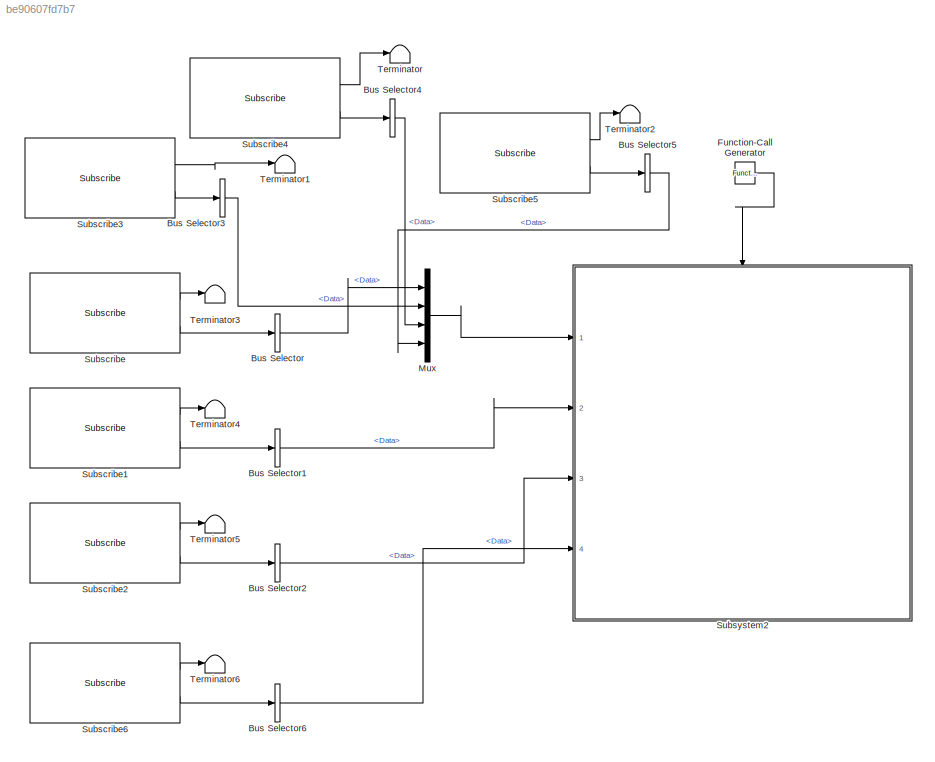
MODEL slx_be90607fd7b7
KIND model
CONFIG AbsTol = auto
CONFIG EnableMultiTasking = off
CONFIG FixedStep = 0.001
CONFIG MaxStep = auto
CONFIG MinStep = auto
CONFIG RelTol = 1e-2
CONFIG SampleTimeConstraint = Unconstrained
CONFIG SolverName = FixedStepAuto
CONFIG StartTime = 0.0
CONFIG StopTime = 10
BLOCK [BusSelector] Bus Selector
  OutputSignals = Data
  Ports = [1, 1]
BLOCK [BusSelector] Bus Selector1
  OutputSignals = Data
  Ports = [1, 1]
BLOCK [BusSelector] Bus Selector2
  OutputSignals = Data
  Ports = [1, 1]
BLOCK [BusSelector] Bus Selector3
  OutputSignals = Data
  Ports = [1, 1]
BLOCK [BusSelector] Bus Selector4
  OutputSignals = Data
  Ports = [1, 1]
BLOCK [BusSelector] Bus Selector5
  OutputSignals = Data
  Ports = [1, 1]
BLOCK [BusSelector] Bus Selector6
  OutputSignals = Data
  Ports = [1, 1]
BLOCK [Reference] Function-Call Generator  REF=simulink/Ports &
Subsystems/Function-Call
Generator
  Ports = [0, 1]
  SourceBlock = simulink/Ports &\nSubsystems/Function-Call\nGenerator
  SourceProductBaseCode = SL
  SourceType = Function-Call Generator
BLOCK [Mux] Mux
  DisplayOption = bar
  Ports = [4, 1]
BLOCK [Reference] Subscribe  REF=robotlib/Subscribe
  Ports = [0, 2]
  SourceBlock = robotlib/Subscribe
  SourceProductBaseCode = RR
  SourceType = ROS Subscribe
BLOCK [Reference] Subscribe1  REF=robotlib/Subscribe
  Ports = [0, 2]
  SourceBlock = robotlib/Subscribe
  SourceProductBaseCode = RR
  SourceType = ROS Subscribe
BLOCK [Reference] Subscribe2  REF=robotlib/Subscribe
  Ports = [0, 2]
  SourceBlock = robotlib/Subscribe
  SourceProductBaseCode = RR
  SourceType = ROS Subscribe
BLOCK [Reference] Subscribe3  REF=robotlib/Subscribe
  Ports = [0, 2]
  SourceBlock = robotlib/Subscribe
  SourceProductBaseCode = RR
  SourceType = ROS Subscribe
BLOCK [Reference] Subscribe4  REF=robotlib/Subscribe
  Ports = [0, 2]
  SourceBlock = robotlib/Subscribe
  SourceProductBaseCode = RR
  SourceType = ROS Subscribe
BLOCK [Reference] Subscribe5  REF=robotlib/Subscribe
  Ports = [0, 2]
  SourceBlock = robotlib/Subscribe
  SourceProductBaseCode = RR
  SourceType = ROS Subscribe
BLOCK [Reference] Subscribe6  REF=robotlib/Subscribe
  Ports = [0, 2]
  SourceBlock = robotlib/Subscribe
  SourceProductBaseCode = RR
  SourceType = ROS Subscribe
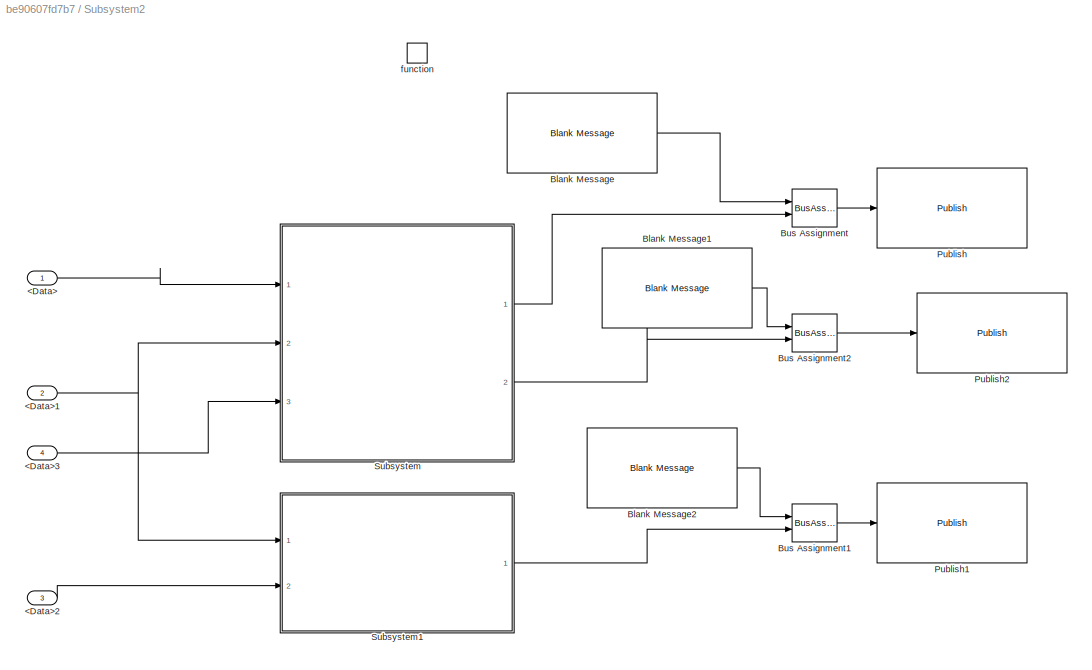
BLOCK [SubSystem] Subsystem2
  Ports = [4, 0, 0, 1]
  RequestExecContextInheritance = off
BLOCK [Inport] Subsystem2/<Data>
BLOCK [Inport] Subsystem2/<Data>1
  Port = 2
BLOCK [Inport] Subsystem2/<Data>2
  Port = 3
BLOCK [Inport] Subsystem2/<Data>3
  Port = 4
BLOCK [Reference] Subsystem2/Blank Message  REF=robotlib/Blank Message
  Ports = [0, 1]
  SourceBlock = robotlib/Blank Message
  SourceProductBaseCode = RR
  SourceType = ROS Blank Message
BLOCK [Reference] Subsystem2/Blank Message1  REF=robotlib/Blank Message
  Ports = [0, 1]
  SourceBlock = robotlib/Blank Message
  SourceProductBaseCode = RR
  SourceType = ROS Blank Message
BLOCK [Reference] Subsystem2/Blank Message2  REF=robotlib/Blank Message
  Ports = [0, 1]
  SourceBlock = robotlib/Blank Message
  SourceProductBaseCode = RR
  SourceType = ROS Blank Message
BLOCK [BusAssignment] Subsystem2/Bus Assignment
  AssignedSignals = Data
  Ports = [2, 1]
BLOCK [BusAssignment] Subsystem2/Bus Assignment1
  AssignedSignals = Data
  Ports = [2, 1]
BLOCK [BusAssignment] Subsystem2/Bus Assignment2
  AssignedSignals = Data
  Ports = [2, 1]
BLOCK [Reference] Subsystem2/Publish  REF=robotlib/Publish
  Ports = [1]
  SourceBlock = robotlib/Publish
  SourceProductBaseCode = RR
  SourceType = ROS Publish
BLOCK [Reference] Subsystem2/Publish1  REF=robotlib/Publish
  Ports = [1]
  SourceBlock = robotlib/Publish
  SourceProductBaseCode = RR
  SourceType = ROS Publish
BLOCK [Reference] Subsystem2/Publish2  REF=robotlib/Publish
  Ports = [1]
  SourceBlock = robotlib/Publish
  SourceProductBaseCode = RR
  SourceType = ROS Publish
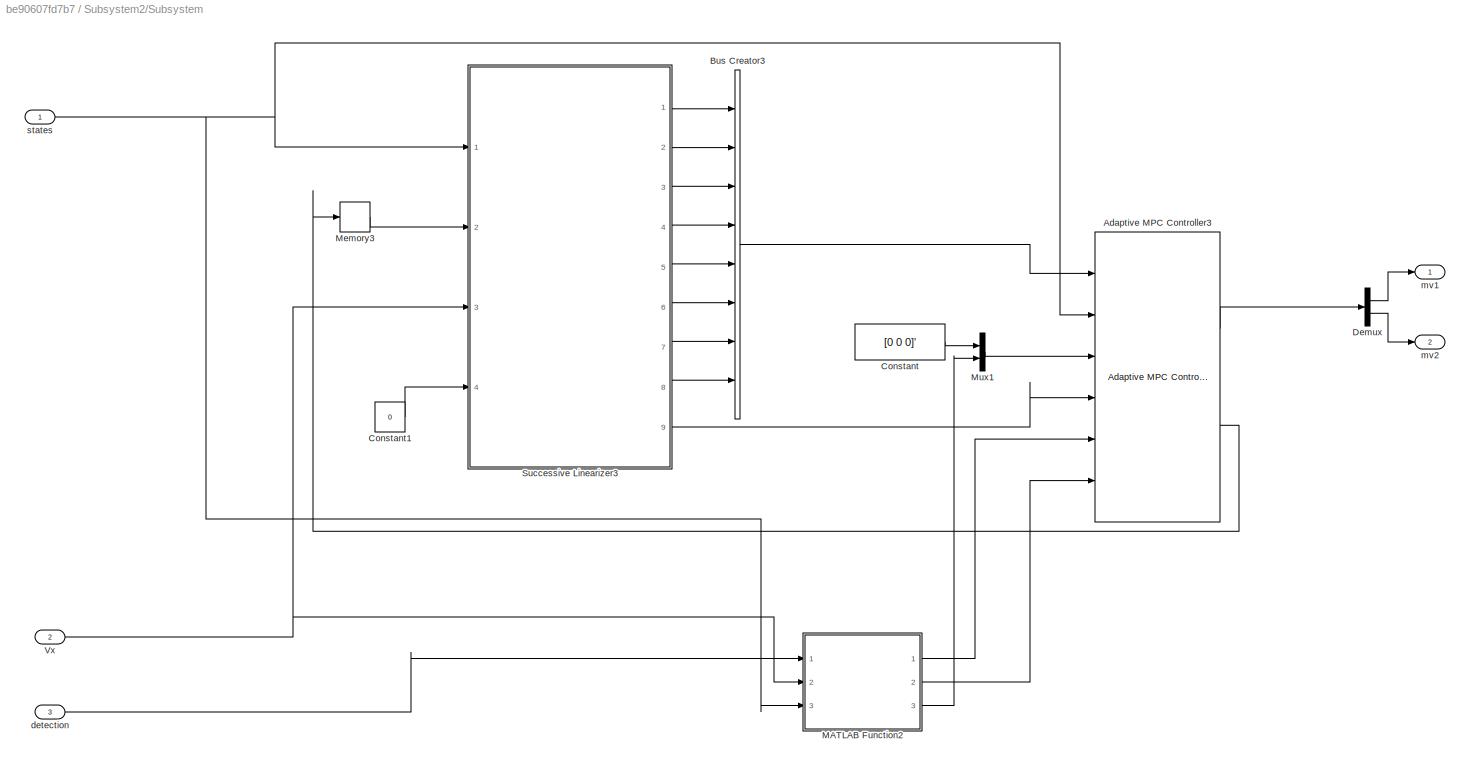
BLOCK [SubSystem] Subsystem2/Subsystem
  Ports = [3, 2]
  RequestExecContextInheritance = off
BLOCK [Reference] Subsystem2/Subsystem/Adaptive MPC Controller3  REF=mpclib/Adaptive MPC Controller  (lib defined in mdl_ae329e0e0455)
  Ports = [6, 2]
  SCDEnableBlockLinearizationSpecification = on
  SourceBlock = mpclib/Adaptive MPC Controller
  SourceProductBaseCode = MP
  SourceType = Adaptive MPC
BLOCK [BusCreator] Subsystem2/Subsystem/Bus Creator3
  DisplayOption = bar
  InheritFromInputs = on
  Inputs = 8
  Ports = [8, 1]
BLOCK [Constant] Subsystem2/Subsystem/Constant
  Value = [0 0 0]'
BLOCK [Constant] Subsystem2/Subsystem/Constant1
  Value = 0
BLOCK [Demux] Subsystem2/Subsystem/Demux
  Outputs = 2
  Ports = [1, 2]
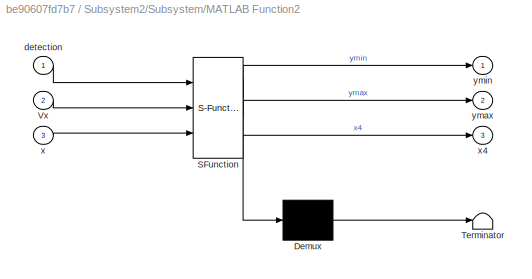
BLOCK [SubSystem] Subsystem2/Subsystem/MATLAB Function2
  ErrorFcn = Stateflow.Translate.translate
  PermitHierarchicalResolution = ExplicitOnly
  Ports = [3, 3]
  RequestExecContextInheritance = off
  SFBlockType = MATLAB Function
  TreatAsAtomicUnit = on
BLOCK [Demux] Subsystem2/Subsystem/MATLAB Function2/ Demux 
  Outputs = 1
  Ports = [1, 1]
BLOCK [S-Function] Subsystem2/Subsystem/MATLAB Function2/ SFunction 
  EnableBusSupport = on
  FunctionName = sf_sfun
  PortCounts = [3 4]
  Ports = [3, 4]
  SFcnIsStateOwnerBlock = off
  SFunctionDeploymentMode = off
  Tag = Stateflow S-Function 2
BLOCK [Terminator] Subsystem2/Subsystem/MATLAB Function2/ Terminator 
BLOCK [Inport] Subsystem2/Subsystem/MATLAB Function2/Vx
  Port = 2
BLOCK [Inport] Subsystem2/Subsystem/MATLAB Function2/detection
BLOCK [Inport] Subsystem2/Subsystem/MATLAB Function2/x
  Port = 3
BLOCK [Outport] Subsystem2/Subsystem/MATLAB Function2/x4
  Port = 3
BLOCK [Outport] Subsystem2/Subsystem/MATLAB Function2/ymax
  Port = 2
BLOCK [Outport] Subsystem2/Subsystem/MATLAB Function2/ymin
BLOCK [Memory] Subsystem2/Subsystem/Memory3
  InheritSampleTime = on
BLOCK [Mux] Subsystem2/Subsystem/Mux1
  DisplayOption = bar
  Inputs = 2
  Ports = [2, 1]
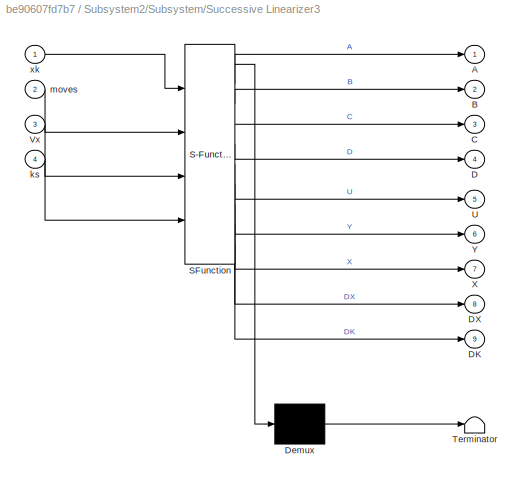
BLOCK [SubSystem] Subsystem2/Subsystem/Successive Linearizer3
  ErrorFcn = Stateflow.Translate.translate
  PermitHierarchicalResolution = ExplicitOnly
  Ports = [4, 9]
  RequestExecContextInheritance = off
  SFBlockType = MATLAB Function
  TreatAsAtomicUnit = on
BLOCK [Demux] Subsystem2/Subsystem/Successive Linearizer3/ Demux 
  Outputs = 1
  Ports = [1, 1]
BLOCK [S-Function] Subsystem2/Subsystem/Successive Linearizer3/ SFunction 
  EnableBusSupport = on
  FunctionName = sf_sfun
  Parameters = PredictionHorizon,Ts
  PortCounts = [4 10]
  Ports = [4, 10]
  SFcnIsStateOwnerBlock = off
  SFunctionDeploymentMode = off
  Tag = Stateflow S-Function 14
BLOCK [Terminator] Subsystem2/Subsystem/Successive Linearizer3/ Terminator 
BLOCK [Outport] Subsystem2/Subsystem/Successive Linearizer3/A
BLOCK [Outport] Subsystem2/Subsystem/Successive Linearizer3/B
  Port = 2
BLOCK [Outport] Subsystem2/Subsystem/Successive Linearizer3/C
  Port = 3
BLOCK [Outport] Subsystem2/Subsystem/Successive Linearizer3/D
  Port = 4
BLOCK [Outport] Subsystem2/Subsystem/Successive Linearizer3/DK
  Port = 9
BLOCK [Outport] Subsystem2/Subsystem/Successive Linearizer3/DX
  Port = 8
BLOCK [Outport] Subsystem2/Subsystem/Successive Linearizer3/U
  Port = 5
BLOCK [Inport] Subsystem2/Subsystem/Successive Linearizer3/Vx
  Port = 3
BLOCK [Outport] Subsystem2/Subsystem/Successive Linearizer3/X
  Port = 7
BLOCK [Outport] Subsystem2/Subsystem/Successive Linearizer3/Y
  Port = 6
BLOCK [Inport] Subsystem2/Subsystem/Successive Linearizer3/ks
  Port = 4
BLOCK [Inport] Subsystem2/Subsystem/Successive Linearizer3/moves
  Port = 2
BLOCK [Inport] Subsystem2/Subsystem/Successive Linearizer3/xk
BLOCK [Inport] Subsystem2/Subsystem/Vx
  Port = 2
BLOCK [Inport] Subsystem2/Subsystem/detection
  Port = 3
BLOCK [Outport] Subsystem2/Subsystem/mv1
BLOCK [Outport] Subsystem2/Subsystem/mv2
  Port = 2
BLOCK [Inport] Subsystem2/Subsystem/states
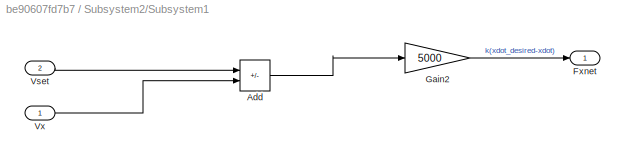
BLOCK [SubSystem] Subsystem2/Subsystem1
  Ports = [2, 1]
  RequestExecContextInheritance = off
BLOCK [Sum] Subsystem2/Subsystem1/Add
  IconShape = rectangular
  Inputs = +-
  Ports = [2, 1]
BLOCK [Outport] Subsystem2/Subsystem1/Fxnet
BLOCK [Gain] Subsystem2/Subsystem1/Gain2
  Gain = 5000
BLOCK [Inport] Subsystem2/Subsystem1/Vset
  Port = 2
BLOCK [Inport] Subsystem2/Subsystem1/Vx
BLOCK [TriggerPort] Subsystem2/function
  Ports = []
  SampleTime = 0.1
  SampleTimeType = periodic
  StatesWhenEnabling = held
  TriggerType = function-call
  VariantControl = (inherit)
BLOCK [Terminator] Terminator
BLOCK [Terminator] Terminator1
BLOCK [Terminator] Terminator2
BLOCK [Terminator] Terminator3
BLOCK [Terminator] Terminator4
BLOCK [Terminator] Terminator5
BLOCK [Terminator] Terminator6
LINE Bus Selector1:1 -> Subsystem2:2
LINE Bus Selector2:1 -> Subsystem2:3
LINE Bus Selector3:1 -> Mux:2
LINE Bus Selector4:1 -> Mux:3
LINE Bus Selector5:1 -> Mux:4
LINE Bus Selector6:1 -> Subsystem2:4
LINE Bus Selector:1 -> Mux:1
LINE Function-Call Generator:1 -> Subsystem2:trigger
LINE Mux:1 -> Subsystem2:1
LINE Subscribe1:1 -> Terminator4:1
LINE Subscribe1:2 -> Bus Selector1:1
LINE Subscribe2:1 -> Terminator5:1
LINE Subscribe2:2 -> Bus Selector2:1
LINE Subscribe3:1 -> Terminator1:1
LINE Subscribe3:2 -> Bus Selector3:1
LINE Subscribe4:1 -> Terminator:1
LINE Subscribe4:2 -> Bus Selector4:1
LINE Subscribe5:1 -> Terminator2:1
LINE Subscribe5:2 -> Bus Selector5:1
LINE Subscribe6:1 -> Terminator6:1
LINE Subscribe6:2 -> Bus Selector6:1
LINE Subscribe:1 -> Terminator3:1
LINE Subscribe:2 -> Bus Selector:1
NET Subsystem2/<Data>1:1 -> Subsystem2/Subsystem1:1, Subsystem2/Subsystem:2
LINE Subsystem2/<Data>2:1 -> Subsystem2/Subsystem1:2
LINE Subsystem2/<Data>3:1 -> Subsystem2/Subsystem:3
LINE Subsystem2/<Data>:1 -> Subsystem2/Subsystem:1
LINE Subsystem2/Blank Message1:1 -> Subsystem2/Bus Assignment2:1
LINE Subsystem2/Blank Message2:1 -> Subsystem2/Bus Assignment1:1
LINE Subsystem2/Blank Message:1 -> Subsystem2/Bus Assignment:1
LINE Subsystem2/Bus Assignment1:1 -> Subsystem2/Publish1:1
LINE Subsystem2/Bus Assignment2:1 -> Subsystem2/Publish2:1
LINE Subsystem2/Bus Assignment:1 -> Subsystem2/Publish:1
LINE Subsystem2/Subsystem/Adaptive MPC Controller3:1 -> Subsystem2/Subsystem/Demux:1
LINE Subsystem2/Subsystem/Adaptive MPC Controller3:2 -> Subsystem2/Subsystem/Memory3:1
LINE Subsystem2/Subsystem/Bus Creator3:1 -> Subsystem2/Subsystem/Adaptive MPC Controller3:1
LINE Subsystem2/Subsystem/Constant1:1 -> Subsystem2/Subsystem/Successive Linearizer3:4
LINE Subsystem2/Subsystem/Constant:1 -> Subsystem2/Subsystem/Mux1:1
LINE Subsystem2/Subsystem/Demux:1 -> Subsystem2/Subsystem/mv1:1
LINE Subsystem2/Subsystem/Demux:2 -> Subsystem2/Subsystem/mv2:1
LINE Subsystem2/Subsystem/MATLAB Function2:1 -> Subsystem2/Subsystem/Adaptive MPC Controller3:5
LINE Subsystem2/Subsystem/MATLAB Function2:2 -> Subsystem2/Subsystem/Adaptive MPC Controller3:6
LINE Subsystem2/Subsystem/MATLAB Function2:3 -> Subsystem2/Subsystem/Mux1:2
LINE Subsystem2/Subsystem/Memory3:1 -> Subsystem2/Subsystem/Successive Linearizer3:2
LINE Subsystem2/Subsystem/Mux1:1 -> Subsystem2/Subsystem/Adaptive MPC Controller3:3
LINE Subsystem2/Subsystem/Successive Linearizer3:1 -> Subsystem2/Subsystem/Bus Creator3:1
LINE Subsystem2/Subsystem/Successive Linearizer3:2 -> Subsystem2/Subsystem/Bus Creator3:2
LINE Subsystem2/Subsystem/Successive Linearizer3:3 -> Subsystem2/Subsystem/Bus Creator3:3
LINE Subsystem2/Subsystem/Successive Linearizer3:4 -> Subsystem2/Subsystem/Bus Creator3:4
LINE Subsystem2/Subsystem/Successive Linearizer3:5 -> Subsystem2/Subsystem/Bus Creator3:5
LINE Subsystem2/Subsystem/Successive Linearizer3:6 -> Subsystem2/Subsystem/Bus Creator3:6
LINE Subsystem2/Subsystem/Successive Linearizer3:7 -> Subsystem2/Subsystem/Bus Creator3:7
LINE Subsystem2/Subsystem/Successive Linearizer3:8 -> Subsystem2/Subsystem/Bus Creator3:8
LINE Subsystem2/Subsystem/Successive Linearizer3:9 -> Subsystem2/Subsystem/Adaptive MPC Controller3:4
NET Subsystem2/Subsystem/Vx:1 -> Subsystem2/Subsystem/MATLAB Function2:2, Subsystem2/Subsystem/Successive Linearizer3:3
LINE Subsystem2/Subsystem/detection:1 -> Subsystem2/Subsystem/MATLAB Function2:1
NET Subsystem2/Subsystem/states:1 -> Subsystem2/Subsystem/Adaptive MPC Controller3:2, Subsystem2/Subsystem/MATLAB Function2:3, Subsystem2/Subsystem/Successive Linearizer3:1
LINE Subsystem2/Subsystem1/Add:1 -> Subsystem2/Subsystem1/Gain2:1
LINE Subsystem2/Subsystem1/Gain2:1 -> Subsystem2/Subsystem1/Fxnet:1
LINE Subsystem2/Subsystem1/Vset:1 -> Subsystem2/Subsystem1/Add:1
LINE Subsystem2/Subsystem1/Vx:1 -> Subsystem2/Subsystem1/Add:2
LINE Subsystem2/Subsystem1:1 -> Subsystem2/Bus Assignment1:2
LINE Subsystem2/Subsystem:1 -> Subsystem2/Bus Assignment:2
LINE Subsystem2/Subsystem:2 -> Subsystem2/Bus Assignment2:2
note: NET lines group one-source signal fan-out (src -> all destinations, sorted); 1:1 wires keep LINE
CHART Subsystem2/Subsystem/MATLAB Function2 states=1 transitions=1
  STATE_LABEL 'eML_blk_kernel()'
  STATE_LABEL 'SCRIPT:\nfunction [ymin,ymax,x4] = fcn(detection,Vx,x)\n\nmiu = 0.7; %frction cooeficient 0.7 for dry road and 0.4 for wet\ng = 9.81; % gravity\nm = 2272;   %mass\nlf = 1.11;  % distance from front axle to the mass center\nlr = 1.67;  % distance from rear axle to the mass center\nC_a = 1.822e5; % rear cornering stifness\n\nFz = m*g*lf/(lf+lr)/2; % the load that beared by the rear tire\n\nrmax = g*miu/Vx; %max...<+390ch>'
CHART Subsystem2/Subsystem/Successive Linearizer3 states=1 transitions=1
  STATE_LABEL 'eML_blk_kernel()'
  STATE_LABEL 'SCRIPT:\nfunction [A,B,C,D,U,Y,X,DX,DK] = fcn(xk,moves,Vx,ks, PredictionHorizon, Ts)\n%sucessive updates the LTI plant model required by adaptive MPC controller\n\n% LTV MPC requires p+1 linearizations from k to k+p\nSteps = PredictionHorizon + 1; % having the number of Steps models\n% Initialize outputs\nA = zeros(4,4,Steps);\nB = zeros(4,6,Steps);\nC = zeros(4,4,Steps);\nD = zeros(4,6,Steps);\nU = zeros(6,...<+1699ch>'
CHART  states=0 transitions=0
CHART  states=0 transitions=0
